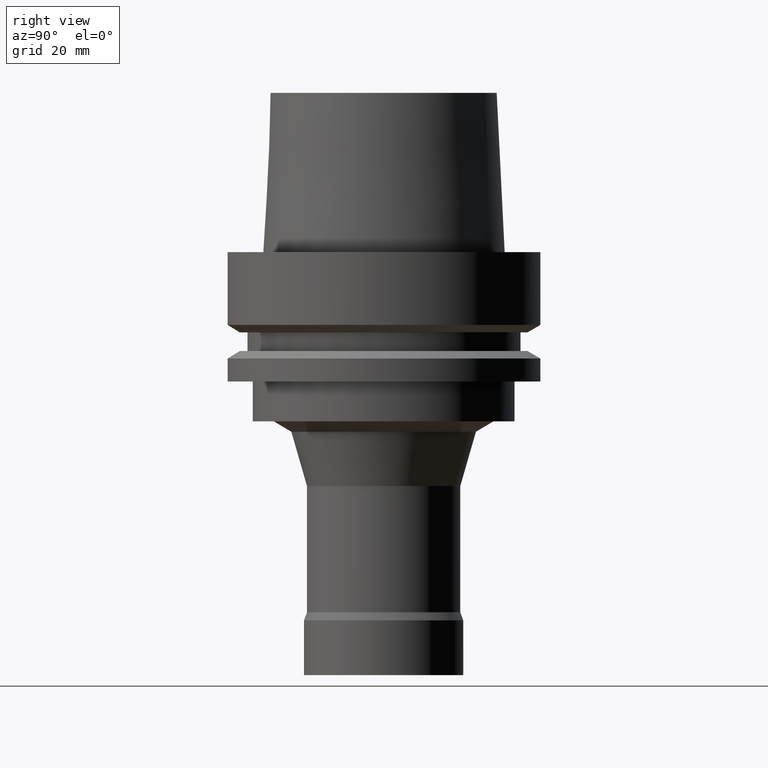
[diagram: clean part render]
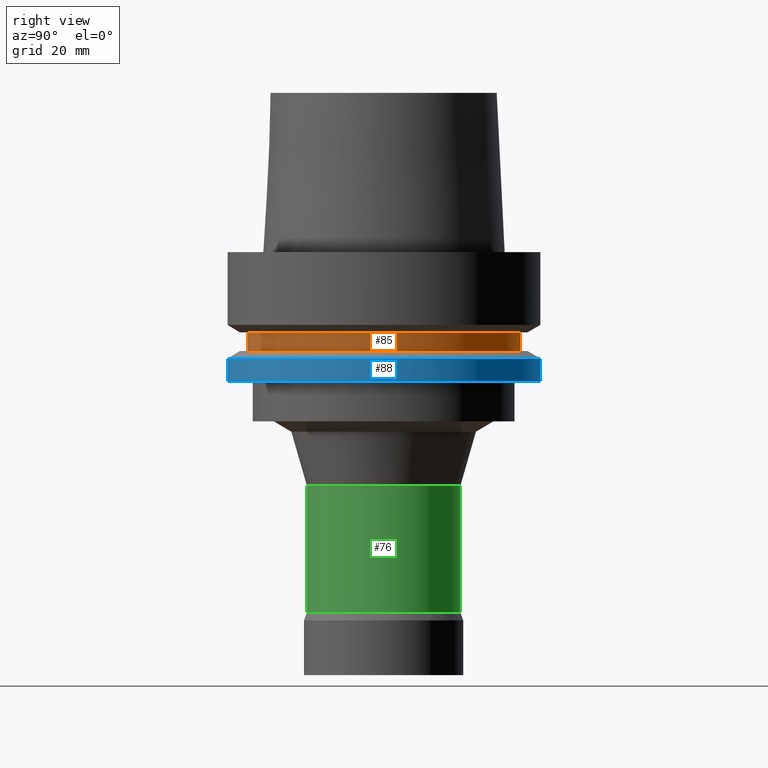
[diagram: same view with three faces highlighted in distinct colors, each labeled with its STEP entity id]
A machine part, right view with three faces highlighted in distinct colors.
Their STEP definitions:

[orange] entity #85 — the highlighted cylindrical surface (bore or boss wall) has radius 27.5 mm, axis along (-0, -0, 1).
#85=ADVANCED_FACE('',(#124,#125),#126,.T.);
#124=FACE_BOUND('',#179,.T.);
#125=FACE_BOUND('',#180,.T.);
#126=CYLINDRICAL_SURFACE('',#181,27.5);
#179=EDGE_LOOP('',(#254));
#180=EDGE_LOOP('',(#255));
#181=AXIS2_PLACEMENT_3D('',#256,#257,#258);
#254=ORIENTED_EDGE('',*,*,#309,.F.);
#255=ORIENTED_EDGE('',*,*,#308,.T.);
#256=CARTESIAN_POINT('',(1.10218211923262E-015,2.20436423846524E-015,-18.0));
#257=DIRECTION('',(-6.12323399573677E-017,-1.22464679914735E-016,1.0));
#258=DIRECTION('',(-1.23259516440783E-032,1.0,1.22464679914735E-016));
#308=EDGE_CURVE('',#336,#336,#337,.T.);
#309=EDGE_CURVE('',#338,#338,#339,.T.);
#336=VERTEX_POINT('',#372);
#337=CIRCLE('',#373,27.5);
#338=VERTEX_POINT('',#374);
#339=CIRCLE('',#375,27.5);
#372=CARTESIAN_POINT('',(9.87371481812553E-016,27.5,-16.125));
#373=AXIS2_PLACEMENT_3D('',#418,#419,#420);
#374=CARTESIAN_POINT('',(1.21699275665268E-015,27.5,-19.875));
#375=AXIS2_PLACEMENT_3D('',#421,#422,#423);
#418=CARTESIAN_POINT('',(9.87371481812553E-016,1.97474296362511E-015,-16.125));
#419=DIRECTION('',(6.12323399573677E-017,1.22464679914735E-016,-1.0));
#420=DIRECTION('',(-1.23259516440783E-032,1.0,1.22464679914735E-016));
#421=CARTESIAN_POINT('',(1.21699275665268E-015,2.43398551330536E-015,-19.875));
#422=DIRECTION('',(6.12323399573677E-017,1.22464679914735E-016,-1.0));
#423=DIRECTION('',(-1.23259516440783E-032,1.0,1.22464679914735E-016));

[blue] entity #88 — the highlighted cylindrical surface (bore or boss wall) has radius 31.5 mm, axis along (-0, -0, 1).
#88=ADVANCED_FACE('',(#133,#134),#135,.T.);
#133=FACE_BOUND('',#188,.T.);
#134=FACE_BOUND('',#189,.T.);
#135=CYLINDRICAL_SURFACE('',#190,31.5);
#188=EDGE_LOOP('',(#269));
#189=EDGE_LOOP('',(#270));
#190=AXIS2_PLACEMENT_3D('',#271,#272,#273);
#269=ORIENTED_EDGE('',*,*,#312,.F.);
#270=ORIENTED_EDGE('',*,*,#311,.T.);
#271=CARTESIAN_POINT('',(1.45051756469205E-015,2.90103512938411E-015,-23.688749535));
#272=DIRECTION('',(-6.12323399573677E-017,-1.22464679914735E-016,1.0));
#273=DIRECTION('',(-1.23259516440783E-032,1.0,1.22464679914735E-016));
#311=EDGE_CURVE('',#342,#342,#343,.T.);
#312=EDGE_CURVE('',#344,#344,#345,.T.);
#342=VERTEX_POINT('',#378);
#343=CIRCLE('',#379,31.5);
#344=VERTEX_POINT('',#380);
#345=CIRCLE('',#381,31.5);
#378=CARTESIAN_POINT('',(1.30899429049255E-015,31.5,-21.37749907));
#379=AXIS2_PLACEMENT_3D('',#427,#428,#429);
#380=CARTESIAN_POINT('',(1.59204083889156E-015,31.5,-26.0));
#381=AXIS2_PLACEMENT_3D('',#430,#431,#432);
#427=CARTESIAN_POINT('',(1.30899429049255E-015,2.6179885809851E-015,-21.37749907));
#428=DIRECTION('',(6.12323399573677E-017,1.22464679914735E-016,-1.0));
#429=DIRECTION('',(-1.23259516440783E-032,1.0,1.22464679914735E-016));
#430=CARTESIAN_POINT('',(1.59204083889156E-015,3.18408167778312E-015,-26.0));
#431=DIRECTION('',(6.12323399573677E-017,1.22464679914735E-016,-1.0));
#432=DIRECTION('',(-1.23259516440783E-032,1.0,1.22464679914735E-016));

[green] entity #76 — the highlighted cylindrical surface (bore or boss wall) has radius 15.4 mm, axis along (-0, -0, 1).
#76=ADVANCED_FACE('',(#98,#99),#100,.T.);
#98=FACE_BOUND('',#153,.T.);
#99=FACE_BOUND('',#154,.T.);
#100=CYLINDRICAL_SURFACE('',#155,15.4);
#153=EDGE_LOOP('',(#210));
#154=EDGE_LOOP('',(#211));
#155=AXIS2_PLACEMENT_3D('',#212,#213,#214);
#210=ORIENTED_EDGE('',*,*,#300,.F.);
#211=ORIENTED_EDGE('',*,*,#298,.T.);
#212=CARTESIAN_POINT('',(3.65414979349523E-015,7.30829958699045E-015,-59.67679491));
#213=DIRECTION('',(-6.12323399573677E-017,-1.22464679914735E-016,1.0));
#214=DIRECTION('',(-1.23259516440783E-032,1.0,1.22464679914735E-016));
#298=EDGE_CURVE('',#316,#316,#317,.T.);
#300=EDGE_CURVE('',#320,#320,#321,.T.);
#316=VERTEX_POINT('',#352);
#317=CIRCLE('',#353,15.4);
#320=VERTEX_POINT('',#356);
#321=CIRCLE('',#357,15.4);
#352=CARTESIAN_POINT('',(2.87791997799628E-015,15.4,-47.0));
#353=AXIS2_PLACEMENT_3D('',#388,#389,#390);
#356=CARTESIAN_POINT('',(4.43037960899417E-015,15.4,-72.35358982));
#357=AXIS2_PLACEMENT_3D('',#394,#395,#396);
#388=CARTESIAN_POINT('',(2.87791997799628E-015,5.75583995599256E-015,-47.0));
#389=DIRECTION('',(6.12323399573677E-017,1.22464679914735E-016,-1.0));
#390=DIRECTION('',(-1.23259516440783E-032,1.0,1.22464679914735E-016));
#394=CARTESIAN_POINT('',(4.43037960899417E-015,8.86075921798835E-015,-72.35358982));
#395=DIRECTION('',(6.12323399573677E-017,1.22464679914735E-016,-1.0));
#396=DIRECTION('',(-1.23259516440783E-032,1.0,1.22464679914735E-016));